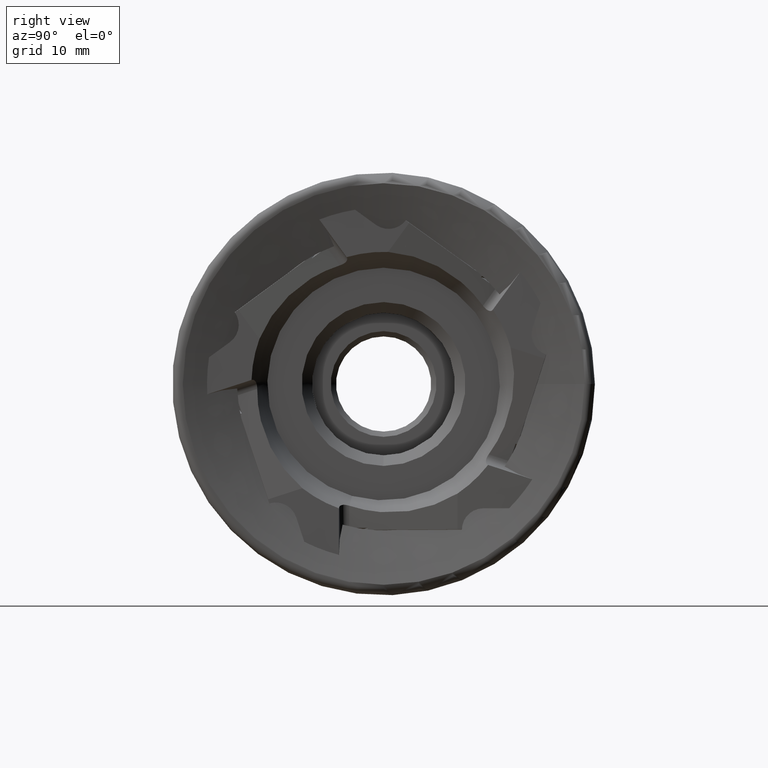
[diagram: clean part render]
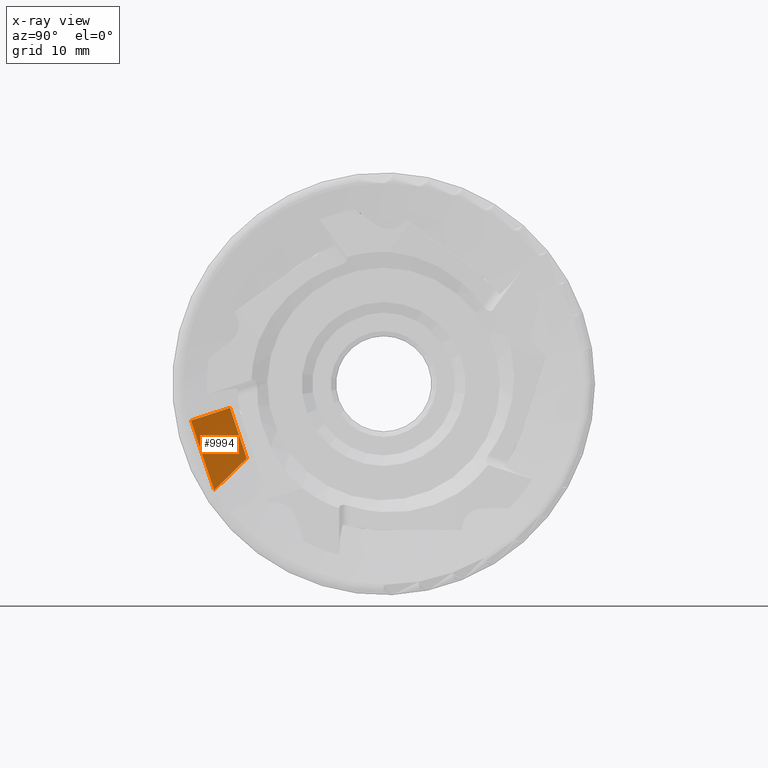
[diagram: x-ray — body ghosted, one internal face saturated and labeled with its STEP entity id]
A machine part, right view, then the same camera in x-ray: the body is ghosted and one INTERNAL B-rep face — a face not visible from any outside direction — is saturated and labeled: STEP entity #9994.
In plain terms, the highlighted planar face has unit normal (0.9934, 0.044, 0.1062).
Its self-contained STEP definition (entity closure, byte-faithful):
#493 = EDGE_LOOP ( 'NONE', ( #9282, #5843, #7426, #6175 ) ) ;
#723 = CARTESIAN_POINT ( 'NONE',  ( -9.861199431185484700, -12.94668952781424000, -7.046978249755887300 ) ) ;
#1955 = CARTESIAN_POINT ( 'NONE',  ( -10.00920896266892700, -18.23312345142045400, -3.469312326743661400 ) ) ;
#2215 = FACE_OUTER_BOUND ( 'NONE', #493, .T. ) ;
#2658 = CARTESIAN_POINT ( 'NONE',  ( -9.708726783347742600, -13.99076806150135400, -8.040498741908971100 ) ) ;
#2826 = CARTESIAN_POINT ( 'NONE',  ( -10.00920896266892700, -18.23312345142045400, -3.469312326743660500 ) ) ;
#2956 = DIRECTION ( 'NONE',  ( 0.1062726814374504600, 0.0000000000000000000, -0.9943370239411253300 ) ) ;
#4068 = VERTEX_POINT ( 'NONE', #7359 ) ;
#4289 = EDGE_CURVE ( 'NONE', #6921, #9546, #4408, .T. ) ;
#4408 = LINE ( 'NONE', #10294, #6383 ) ;
#4423 = AXIS2_PLACEMENT_3D ( 'NONE', #5403, #7916, #2956 ) ;
#5139 = CARTESIAN_POINT ( 'NONE',  ( -9.401397751548811900, -16.04194137772639900, -10.06518398475483900 ) ) ;
#5403 = CARTESIAN_POINT ( 'NONE',  ( -10.30162599729160700, -14.53444371657277800, -2.267538430834101300 ) ) ;
#5759 = VECTOR ( 'NONE', #8623, 1000.000000000000200 ) ;
#5843 = ORIENTED_EDGE ( 'NONE', *, *, #8235, .T. ) ;
#6175 = ORIENTED_EDGE ( 'NONE', *, *, #10336, .F. ) ;
#6383 = VECTOR ( 'NONE', #6969, 1000.000000000000200 ) ;
#6921 = VERTEX_POINT ( 'NONE', #8590 ) ;
#6969 = DIRECTION ( 'NONE',  ( 0.07497872682632784900, -0.9483794191917105400, -0.3081471527973226300 ) ) ;
#7188 = B_SPLINE_CURVE_WITH_KNOTS ( 'NONE', 3,
 ( #7614, #2658, #10137, #5139 ),
 .UNSPECIFIED., .F., .F.,
 ( 4, 4 ),
 ( 0.0009211499362693461400, 0.005268740854576920600 ),
 .UNSPECIFIED. ) ;
#7316 = VECTOR ( 'NONE', #9635, 1000.000000000000200 ) ;
#7359 = CARTESIAN_POINT ( 'NONE',  ( -9.401397751548811900, -16.04194137772639900, -10.06518398475483900 ) ) ;
#7426 = ORIENTED_EDGE ( 'NONE', *, *, #4289, .T. ) ;
#7586 = EDGE_CURVE ( 'NONE', #10223, #4068, #7188, .T. ) ;
#7614 = CARTESIAN_POINT ( 'NONE',  ( -9.861199431185484700, -12.94668952781424000, -7.046978249755887300 ) ) ;
#7916 = DIRECTION ( 'NONE',  ( 0.9933723187723624300, 0.04403927204728948900, 0.1061695757473146800 ) ) ;
#8235 = EDGE_CURVE ( 'NONE', #10223, #6921, #9518, .T. ) ;
#8590 = CARTESIAN_POINT ( 'NONE',  ( -10.30162599729160700, -14.53444371657277800, -2.267538430834101300 ) ) ;
#8623 = DIRECTION ( 'NONE',  ( -0.08711846429042964500, -0.3140653113146028600, 0.9453958712669199300 ) ) ;
#8710 = PLANE ( 'NONE',  #4423 ) ;
#8792 = CARTESIAN_POINT ( 'NONE',  ( -10.30162599729160700, -14.53444371657277800, -2.267538430834101300 ) ) ;
#9282 = ORIENTED_EDGE ( 'NONE', *, *, #7586, .F. ) ;
#9518 = LINE ( 'NONE', #8792, #7316 ) ;
#9546 = VERTEX_POINT ( 'NONE', #1955 ) ;
#9635 = DIRECTION ( 'NONE',  ( -0.08711846429042964500, -0.3140653113146028600, 0.9453958712669199300 ) ) ;
#9994 = ADVANCED_FACE ( 'NONE', ( #2215 ), #8710, .T. ) ;
#10137 = CARTESIAN_POINT ( 'NONE',  ( -9.555342614485919500, -15.02070431392239100, -9.048414087904058400 ) ) ;
#10223 = VERTEX_POINT ( 'NONE', #723 ) ;
#10294 = CARTESIAN_POINT ( 'NONE',  ( -10.30162599729160700, -14.53444371657277800, -2.267538430834101300 ) ) ;
#10336 = EDGE_CURVE ( 'NONE', #4068, #9546, #10468, .T. ) ;
#10468 = LINE ( 'NONE', #2826, #5759 ) ;